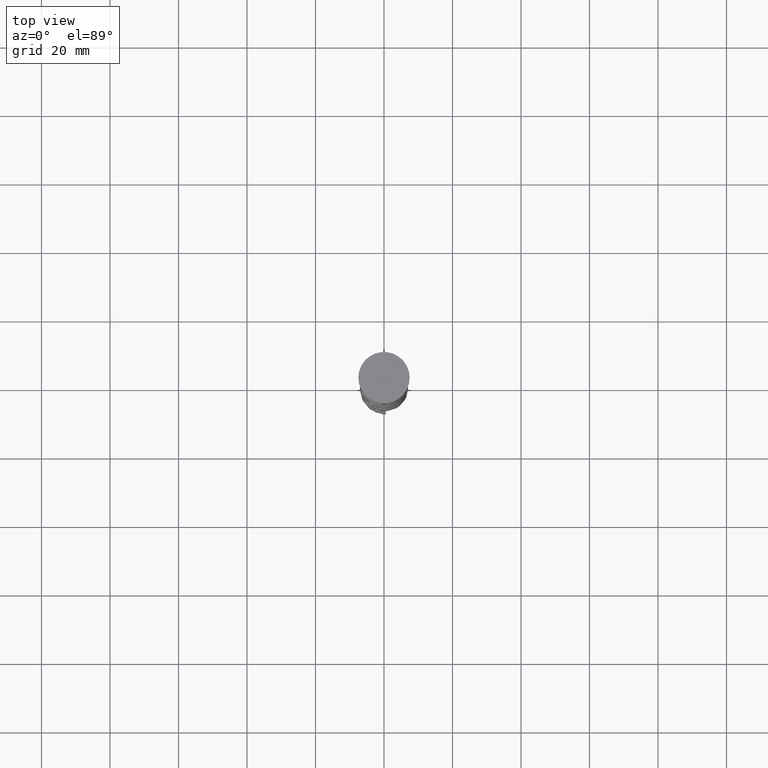
[diagram: clean part render]
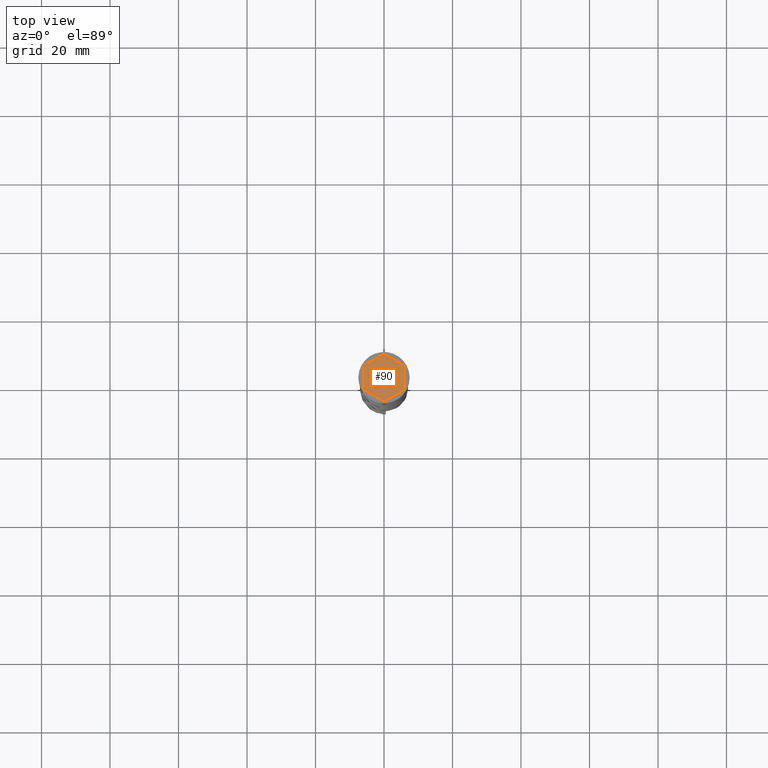
[diagram: same view with one face highlighted and labeled with its STEP entity id]
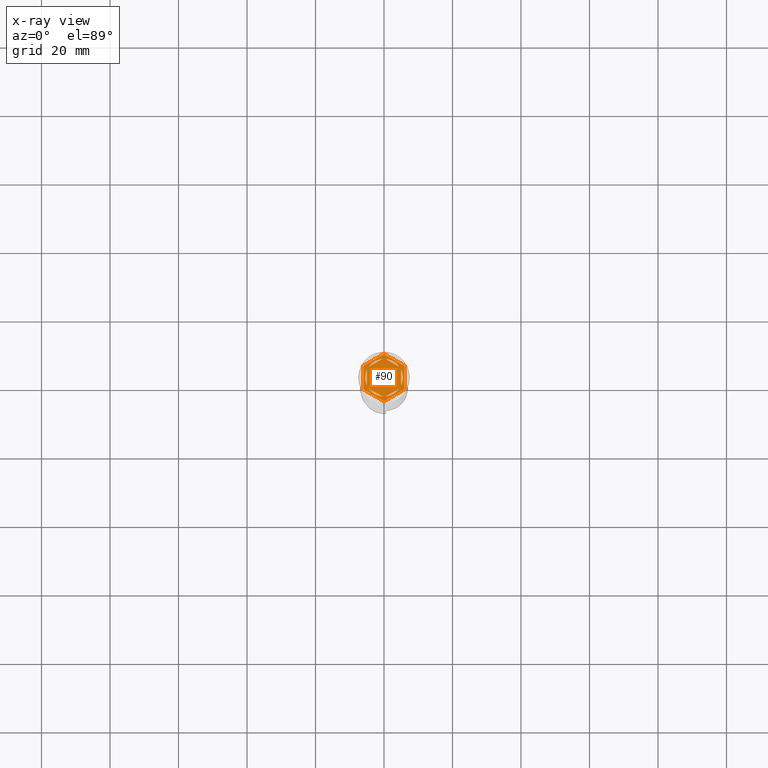
[diagram: x-ray of the same camera — body ghosted, the highlighted face saturated]
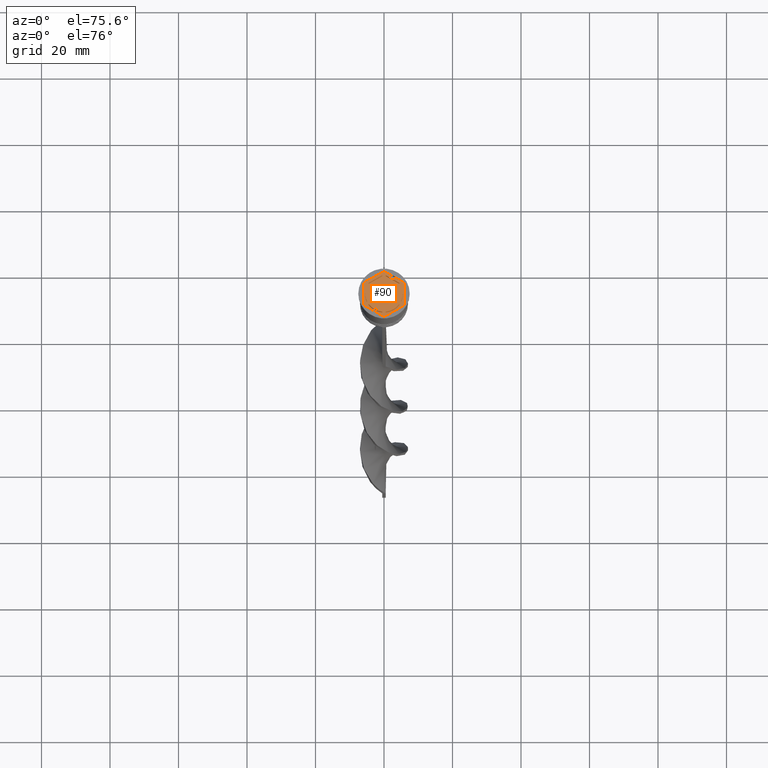
[diagram: same view with one face highlighted and labeled with its STEP entity id]
A machine part, top view. The second image highlights one B-rep face of the part: STEP entity #90.
The next image is the same camera in x-ray: the body ghosted, the highlighted face saturated — about 0% of this face is hidden behind the body in this view.
A second angle (auxiliary view) of the same face is appended — the face is thin or edge-on in the first view.
In plain terms, the highlighted planar face has unit normal (0, 0, 1).
Its self-contained STEP definition (entity closure, byte-faithful):
#26 = DIRECTION ( 'NONE',  ( 0.8660254037844387076, -0.4999999999999998335, 0.000000000000000000 ) ) ;
#52 = FACE_BOUND ( 'NONE', #2741, .T. ) ;
#74 = AXIS2_PLACEMENT_3D ( 'NONE', #2184, #1336, #3378 ) ;
#90 = ADVANCED_FACE ( 'NONE', ( #350, #3655, #3360, #1538, #3630, #52, #3341 ), #960, .T. ) ;
#122 = AXIS2_PLACEMENT_3D ( 'NONE', #2680, #1197, #3591 ) ;
#202 = VERTEX_POINT ( 'NONE', #275 ) ;
#206 = DIRECTION ( 'NONE',  ( 0.000000000000000000, 0.000000000000000000, 1.000000000000000000 ) ) ;
#254 = LINE ( 'NONE', #1461, #1760 ) ;
#259 = DIRECTION ( 'NONE',  ( 1.000000000000000000, 0.000000000000000000, 0.000000000000000000 ) ) ;
#275 = CARTESIAN_POINT ( 'NONE',  ( 4.484313483298445036, -3.184483095183233026, -1.000000000000000888 ) ) ;
#282 = EDGE_CURVE ( 'NONE', #1657, #2787, #254, .T. ) ;
#333 = VECTOR ( 'NONE', #826, 1000.000000000000227 ) ;
#336 = EDGE_CURVE ( 'NONE', #3718, #3645, #1494, .T. ) ;
#350 = FACE_BOUND ( 'NONE', #1507, .T. ) ;
#385 = ORIENTED_EDGE ( 'NONE', *, *, #336, .T. ) ;
#393 = CIRCLE ( 'NONE', #2391, 5.500000000000001776 ) ;
#448 = EDGE_CURVE ( 'NONE', #202, #1633, #2189, .T. ) ;
#490 = LINE ( 'NONE', #549, #2323 ) ;
#506 = VECTOR ( 'NONE', #26, 1000.000000000000114 ) ;
#522 = VERTEX_POINT ( 'NONE', #1567 ) ;
#527 = CARTESIAN_POINT ( 'NONE',  ( -4.484313483298445036, 3.184483095183233470, -1.000000000000000888 ) ) ;
#536 = ORIENTED_EDGE ( 'NONE', *, *, #858, .F. ) ;
#548 = VERTEX_POINT ( 'NONE', #2147 ) ;
#549 = CARTESIAN_POINT ( 'NONE',  ( -6.000000000000000000, -3.464101615137755719, -1.000000000000000000 ) ) ;
#569 = DIRECTION ( 'NONE',  ( 0.000000000000000000, -1.000000000000000000, 0.000000000000000000 ) ) ;
#624 = VERTEX_POINT ( 'NONE', #527 ) ;
#648 = DIRECTION ( 'NONE',  ( 1.000000000000000000, 0.000000000000000000, 0.000000000000000000 ) ) ;
#681 = VERTEX_POINT ( 'NONE', #814 ) ;
#752 = VECTOR ( 'NONE', #3566, 1000.000000000000000 ) ;
#785 = VERTEX_POINT ( 'NONE', #3437 ) ;
#791 = ORIENTED_EDGE ( 'NONE', *, *, #3511, .T. ) ;
#802 = AXIS2_PLACEMENT_3D ( 'NONE', #2164, #935, #1558 ) ;
#814 = CARTESIAN_POINT ( 'NONE',  ( 0.5156865167015596274, 5.475770942661155161, -1.000000000000000888 ) ) ;
#823 = LINE ( 'NONE', #3870, #1395 ) ;
#826 = DIRECTION ( 'NONE',  ( -0.8660254037844385966, -0.4999999999999998890, 0.000000000000000000 ) ) ;
#832 = VERTEX_POINT ( 'NONE', #2080 ) ;
#838 = CARTESIAN_POINT ( 'NONE',  ( 4.484313483298442371, 3.184483095183238355, -1.000000000000000888 ) ) ;
#858 = EDGE_CURVE ( 'NONE', #2397, #832, #1512, .T. ) ;
#871 = CARTESIAN_POINT ( 'NONE',  ( -5.000000000000000888, -2.886751345948129099, -1.000000000000000888 ) ) ;
#880 = VERTEX_POINT ( 'NONE', #2641 ) ;
#895 = EDGE_CURVE ( 'NONE', #522, #785, #1193, .T. ) ;
#917 = EDGE_LOOP ( 'NONE', ( #3074, #2180 ) ) ;
#935 = DIRECTION ( 'NONE',  ( 0.000000000000000000, 0.000000000000000000, 1.000000000000000000 ) ) ;
#960 = PLANE ( 'NONE',  #802 ) ;
#976 = EDGE_CURVE ( 'NONE', #880, #1657, #3396, .T. ) ;
#1093 = LINE ( 'NONE', #3483, #506 ) ;
#1095 = EDGE_LOOP ( 'NONE', ( #2551, #2768 ) ) ;
#1128 = CARTESIAN_POINT ( 'NONE',  ( 0.000000000000000000, 6.928203230275506996, -1.000000000000000000 ) ) ;
#1164 = DIRECTION ( 'NONE',  ( 0.000000000000000000, 0.000000000000000000, 1.000000000000000000 ) ) ;
#1193 = LINE ( 'NONE', #871, #1647 ) ;
#1197 = DIRECTION ( 'NONE',  ( 0.000000000000000000, 0.000000000000000000, 1.000000000000000000 ) ) ;
#1198 = DIRECTION ( 'NONE',  ( 0.000000000000000000, 0.000000000000000000, 1.000000000000000000 ) ) ;
#1202 = ORIENTED_EDGE ( 'NONE', *, *, #2418, .F. ) ;
#1207 = AXIS2_PLACEMENT_3D ( 'NONE', #2062, #3632, #648 ) ;
#1218 = DIRECTION ( 'NONE',  ( 0.8660254037844385966, 0.5000000000000001110, -0.000000000000000000 ) ) ;
#1250 = ORIENTED_EDGE ( 'NONE', *, *, #1268, .F. ) ;
#1268 = EDGE_CURVE ( 'NONE', #681, #1868, #1093, .T. ) ;
#1302 = LINE ( 'NONE', #1560, #3720 ) ;
#1336 = DIRECTION ( 'NONE',  ( 0.000000000000000000, 0.000000000000000000, 1.000000000000000000 ) ) ;
#1395 = VECTOR ( 'NONE', #3539, 1000.000000000000227 ) ;
#1416 = DIRECTION ( 'NONE',  ( 1.000000000000000000, 0.000000000000000000, 0.000000000000000000 ) ) ;
#1461 = CARTESIAN_POINT ( 'NONE',  ( -5.000000000000000888, 2.886751345948129099, -1.000000000000000888 ) ) ;
#1494 = LINE ( 'NONE', #2394, #2324 ) ;
#1505 = CIRCLE ( 'NONE', #122, 5.500000000000001776 ) ;
#1507 = EDGE_LOOP ( 'NONE', ( #1919, #1250 ) ) ;
#1512 = LINE ( 'NONE', #3590, #752 ) ;
#1526 = ORIENTED_EDGE ( 'NONE', *, *, #1897, .T. ) ;
#1538 = FACE_BOUND ( 'NONE', #917, .T. ) ;
#1558 = DIRECTION ( 'NONE',  ( 1.000000000000000000, 0.000000000000000000, -0.000000000000000000 ) ) ;
#1560 = CARTESIAN_POINT ( 'NONE',  ( 6.000000000000000000, 3.464101615137753942, -1.000000000000000000 ) ) ;
#1567 = CARTESIAN_POINT ( 'NONE',  ( -0.5156865167015569629, -5.475770942661155161, -1.000000000000000888 ) ) ;
#1602 = CIRCLE ( 'NONE', #3094, 5.500000000000001776 ) ;
#1611 = CARTESIAN_POINT ( 'NONE',  ( 0.5156865167015526330, -5.475770942661155161, -1.000000000000000888 ) ) ;
#1633 = VERTEX_POINT ( 'NONE', #1611 ) ;
#1647 = VECTOR ( 'NONE', #2101, 1000.000000000000000 ) ;
#1657 = VERTEX_POINT ( 'NONE', #2796 ) ;
#1701 = ORIENTED_EDGE ( 'NONE', *, *, #3441, .F. ) ;
#1704 = AXIS2_PLACEMENT_3D ( 'NONE', #2916, #206, #1416 ) ;
#1713 = EDGE_LOOP ( 'NONE', ( #1202, #536 ) ) ;
#1760 = VECTOR ( 'NONE', #2665, 1000.000000000000000 ) ;
#1779 = CIRCLE ( 'NONE', #1207, 5.500000000000001776 ) ;
#1868 = VERTEX_POINT ( 'NONE', #838 ) ;
#1897 = EDGE_CURVE ( 'NONE', #3645, #2348, #490, .T. ) ;
#1919 = ORIENTED_EDGE ( 'NONE', *, *, #2008, .F. ) ;
#1992 = DIRECTION ( 'NONE',  ( 2.503857664561932376E-16, 1.000000000000000000, 0.000000000000000000 ) ) ;
#2008 = EDGE_CURVE ( 'NONE', #1868, #681, #1505, .T. ) ;
#2041 = ORIENTED_EDGE ( 'NONE', *, *, #2694, .T. ) ;
#2062 = CARTESIAN_POINT ( 'NONE',  ( 0.000000000000000000, 0.000000000000000000, -1.000000000000000000 ) ) ;
#2080 = CARTESIAN_POINT ( 'NONE',  ( 4.999999999999999112, -2.291287847477924355, -1.000000000000000888 ) ) ;
#2101 = DIRECTION ( 'NONE',  ( -0.8660254037844385966, 0.5000000000000001110, 0.000000000000000000 ) ) ;
#2103 = DIRECTION ( 'NONE',  ( 1.000000000000000000, 0.000000000000000000, 0.000000000000000000 ) ) ;
#2147 = CARTESIAN_POINT ( 'NONE',  ( -0.5156865167015569629, 5.475770942661155161, -1.000000000000000888 ) ) ;
#2154 = ORIENTED_EDGE ( 'NONE', *, *, #282, .F. ) ;
#2160 = AXIS2_PLACEMENT_3D ( 'NONE', #2681, #1198, #2103 ) ;
#2164 = CARTESIAN_POINT ( 'NONE',  ( 0.000000000000000000, 0.000000000000000000, -1.000000000000000000 ) ) ;
#2166 = CARTESIAN_POINT ( 'NONE',  ( 0.000000000000000000, 0.000000000000000000, -1.000000000000000000 ) ) ;
#2180 = ORIENTED_EDGE ( 'NONE', *, *, #895, .F. ) ;
#2184 = CARTESIAN_POINT ( 'NONE',  ( 0.000000000000000000, 0.000000000000000000, -1.000000000000000000 ) ) ;
#2189 = LINE ( 'NONE', #2810, #2944 ) ;
#2251 = CARTESIAN_POINT ( 'NONE',  ( -6.000000000000000000, 3.464101615137752166, -1.000000000000000000 ) ) ;
#2273 = CARTESIAN_POINT ( 'NONE',  ( 0.000000000000000000, 6.928203230275506996, -1.000000000000000000 ) ) ;
#2285 = DIRECTION ( 'NONE',  ( 0.8660254037844388186, -0.4999999999999997224, 0.000000000000000000 ) ) ;
#2323 = VECTOR ( 'NONE', #2285, 1000.000000000000114 ) ;
#2324 = VECTOR ( 'NONE', #569, 1000.000000000000000 ) ;
#2348 = VERTEX_POINT ( 'NONE', #3592 ) ;
#2391 = AXIS2_PLACEMENT_3D ( 'NONE', #2651, #1164, #259 ) ;
#2394 = CARTESIAN_POINT ( 'NONE',  ( -6.000000000000000000, 3.464101615137752166, -1.000000000000000000 ) ) ;
#2397 = VERTEX_POINT ( 'NONE', #2981 ) ;
#2418 = EDGE_CURVE ( 'NONE', #832, #2397, #2528, .T. ) ;
#2526 = CARTESIAN_POINT ( 'NONE',  ( 5.999999999999998224, -3.464101615137753942, -1.000000000000000000 ) ) ;
#2528 = CIRCLE ( 'NONE', #2160, 5.500000000000001776 ) ;
#2545 = LINE ( 'NONE', #2526, #3145 ) ;
#2551 = ORIENTED_EDGE ( 'NONE', *, *, #3558, .F. ) ;
#2641 = CARTESIAN_POINT ( 'NONE',  ( -5.500000000000001776, 0.000000000000000000, -1.000000000000000000 ) ) ;
#2651 = CARTESIAN_POINT ( 'NONE',  ( 0.000000000000000000, 0.000000000000000000, -1.000000000000000000 ) ) ;
#2665 = DIRECTION ( 'NONE',  ( 0.000000000000000000, 1.000000000000000000, 0.000000000000000000 ) ) ;
#2680 = CARTESIAN_POINT ( 'NONE',  ( 0.000000000000000000, 0.000000000000000000, -1.000000000000000000 ) ) ;
#2681 = CARTESIAN_POINT ( 'NONE',  ( 0.000000000000000000, 0.000000000000000000, -1.000000000000000000 ) ) ;
#2694 = EDGE_CURVE ( 'NONE', #3623, #3718, #3814, .T. ) ;
#2741 = EDGE_LOOP ( 'NONE', ( #3301, #3806 ) ) ;
#2751 = DIRECTION ( 'NONE',  ( -0.8660254037844387076, 0.4999999999999998335, 0.000000000000000000 ) ) ;
#2768 = ORIENTED_EDGE ( 'NONE', *, *, #448, .F. ) ;
#2775 = DIRECTION ( 'NONE',  ( -0.8660254037844387076, -0.4999999999999997224, 0.000000000000000000 ) ) ;
#2787 = VERTEX_POINT ( 'NONE', #3355 ) ;
#2791 = DIRECTION ( 'NONE',  ( 1.000000000000000000, 0.000000000000000000, 0.000000000000000000 ) ) ;
#2796 = CARTESIAN_POINT ( 'NONE',  ( -5.000000000000000888, -2.291287847477921247, -1.000000000000000888 ) ) ;
#2810 = CARTESIAN_POINT ( 'NONE',  ( -1.734723475976807094E-15, -5.773502691896258199, -1.000000000000000888 ) ) ;
#2887 = VECTOR ( 'NONE', #1218, 1000.000000000000000 ) ;
#2890 = ORIENTED_EDGE ( 'NONE', *, *, #3811, .T. ) ;
#2914 = EDGE_LOOP ( 'NONE', ( #1701, #2154, #2919 ) ) ;
#2916 = CARTESIAN_POINT ( 'NONE',  ( 0.000000000000000000, 0.000000000000000000, -1.000000000000000000 ) ) ;
#2919 = ORIENTED_EDGE ( 'NONE', *, *, #976, .F. ) ;
#2931 = VERTEX_POINT ( 'NONE', #3033 ) ;
#2944 = VECTOR ( 'NONE', #2775, 1000.000000000000114 ) ;
#2981 = CARTESIAN_POINT ( 'NONE',  ( 5.000000000000000888, 2.291287847477922135, -1.000000000000000888 ) ) ;
#3025 = LINE ( 'NONE', #3273, #2887 ) ;
#3033 = CARTESIAN_POINT ( 'NONE',  ( 5.999999999999998224, -3.464101615137753942, -1.000000000000000000 ) ) ;
#3074 = ORIENTED_EDGE ( 'NONE', *, *, #3852, .F. ) ;
#3094 = AXIS2_PLACEMENT_3D ( 'NONE', #2166, #3398, #2791 ) ;
#3145 = VECTOR ( 'NONE', #1992, 1000.000000000000000 ) ;
#3273 = CARTESIAN_POINT ( 'NONE',  ( 4.336808689942017736E-16, 5.773502691896259087, -1.000000000000000888 ) ) ;
#3301 = ORIENTED_EDGE ( 'NONE', *, *, #3334, .F. ) ;
#3327 = EDGE_CURVE ( 'NONE', #624, #548, #3025, .T. ) ;
#3334 = EDGE_CURVE ( 'NONE', #548, #624, #1779, .T. ) ;
#3339 = CIRCLE ( 'NONE', #74, 5.500000000000001776 ) ;
#3341 = FACE_OUTER_BOUND ( 'NONE', #3891, .T. ) ;
#3355 = CARTESIAN_POINT ( 'NONE',  ( -5.000000000000000888, 2.291287847477921247, -1.000000000000000888 ) ) ;
#3360 = FACE_BOUND ( 'NONE', #1095, .T. ) ;
#3378 = DIRECTION ( 'NONE',  ( 1.000000000000000000, 0.000000000000000000, 0.000000000000000000 ) ) ;
#3396 = CIRCLE ( 'NONE', #1704, 5.500000000000001776 ) ;
#3398 = DIRECTION ( 'NONE',  ( 0.000000000000000000, 0.000000000000000000, 1.000000000000000000 ) ) ;
#3437 = CARTESIAN_POINT ( 'NONE',  ( -4.484313483298445036, -3.184483095183233470, -1.000000000000000888 ) ) ;
#3441 = EDGE_CURVE ( 'NONE', #2787, #880, #1602, .T. ) ;
#3443 = ORIENTED_EDGE ( 'NONE', *, *, #3640, .T. ) ;
#3479 = CARTESIAN_POINT ( 'NONE',  ( 6.000000000000000000, 3.464101615137753942, -1.000000000000000000 ) ) ;
#3483 = CARTESIAN_POINT ( 'NONE',  ( 5.000000000000000888, 2.886751345948130876, -1.000000000000000888 ) ) ;
#3511 = EDGE_CURVE ( 'NONE', #3732, #3623, #1302, .T. ) ;
#3539 = DIRECTION ( 'NONE',  ( 0.8660254037844385966, 0.5000000000000000000, 0.000000000000000000 ) ) ;
#3558 = EDGE_CURVE ( 'NONE', #1633, #202, #3339, .T. ) ;
#3566 = DIRECTION ( 'NONE',  ( -3.004629197474317076E-16, -1.000000000000000000, 0.000000000000000000 ) ) ;
#3590 = CARTESIAN_POINT ( 'NONE',  ( 4.999999999999999112, -2.886751345948130432, -1.000000000000000888 ) ) ;
#3591 = DIRECTION ( 'NONE',  ( 1.000000000000000000, 0.000000000000000000, 0.000000000000000000 ) ) ;
#3592 = CARTESIAN_POINT ( 'NONE',  ( -4.280685092543093048E-16, -6.928203230275507885, -1.000000000000000000 ) ) ;
#3623 = VERTEX_POINT ( 'NONE', #2273 ) ;
#3630 = FACE_BOUND ( 'NONE', #2914, .T. ) ;
#3632 = DIRECTION ( 'NONE',  ( 0.000000000000000000, 0.000000000000000000, 1.000000000000000000 ) ) ;
#3640 = EDGE_CURVE ( 'NONE', #2931, #3732, #2545, .T. ) ;
#3645 = VERTEX_POINT ( 'NONE', #3727 ) ;
#3655 = FACE_BOUND ( 'NONE', #1713, .T. ) ;
#3718 = VERTEX_POINT ( 'NONE', #2251 ) ;
#3720 = VECTOR ( 'NONE', #2751, 1000.000000000000000 ) ;
#3727 = CARTESIAN_POINT ( 'NONE',  ( -6.000000000000000000, -3.464101615137755719, -1.000000000000000000 ) ) ;
#3732 = VERTEX_POINT ( 'NONE', #3479 ) ;
#3806 = ORIENTED_EDGE ( 'NONE', *, *, #3327, .F. ) ;
#3811 = EDGE_CURVE ( 'NONE', #2348, #2931, #823, .T. ) ;
#3814 = LINE ( 'NONE', #1128, #333 ) ;
#3852 = EDGE_CURVE ( 'NONE', #785, #522, #393, .T. ) ;
#3870 = CARTESIAN_POINT ( 'NONE',  ( -4.280685092543093048E-16, -6.928203230275507885, -1.000000000000000000 ) ) ;
#3891 = EDGE_LOOP ( 'NONE', ( #791, #2041, #385, #1526, #2890, #3443 ) ) ;